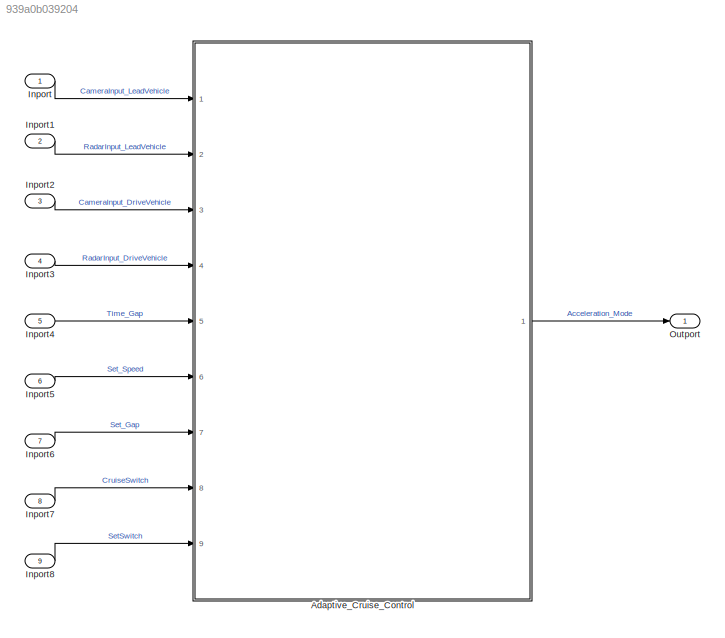
MODEL slx_939a0b039204
KIND model
CONFIG AbsTol = auto
CONFIG EnableMultiTasking = off
CONFIG FixedStep = 0.01
CONFIG MaxStep = 0.01
CONFIG MinStep = auto
CONFIG RelTol = 1e-3
CONFIG SampleTimeConstraint = Unconstrained
CONFIG SolverName = FixedStepDiscrete
CONFIG StartTime = 0.0
CONFIG StopTime = 10.0
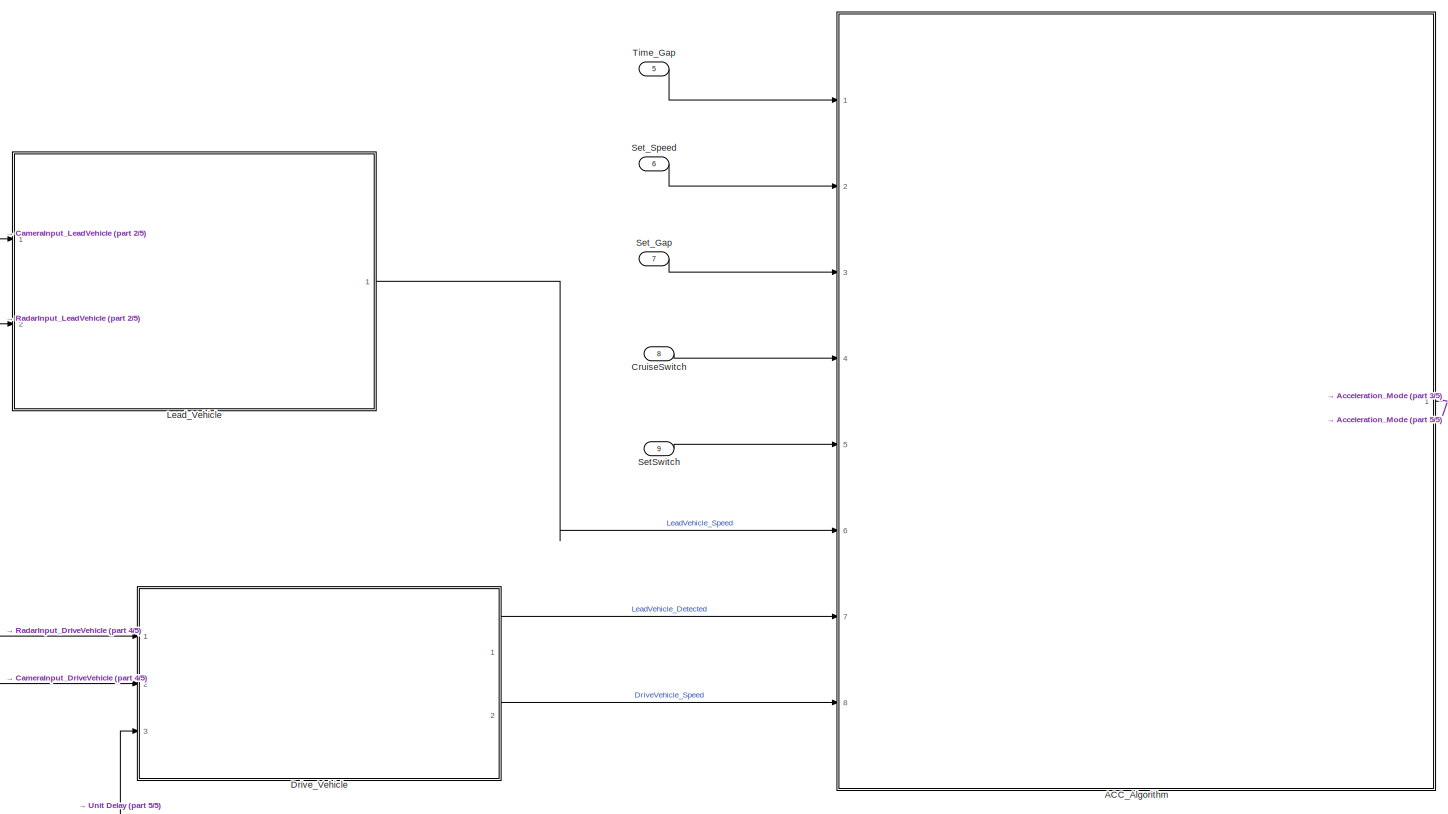
[diagram: Adaptive_Cruise_Control - part 1/5, center side, full height]
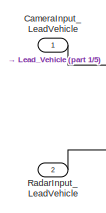
[diagram: Adaptive_Cruise_Control - part 2/5, top left region]
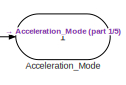
[diagram: Adaptive_Cruise_Control - part 3/5, middle right region]
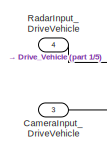
[diagram: Adaptive_Cruise_Control - part 4/5, middle left region]
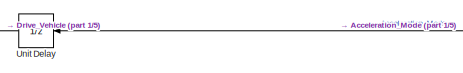
[diagram: Adaptive_Cruise_Control - part 5/5, bottom center region]
BLOCK [SubSystem] Adaptive_Cruise_Control
  Ports = [9, 1]
  RequestExecContextInheritance = off
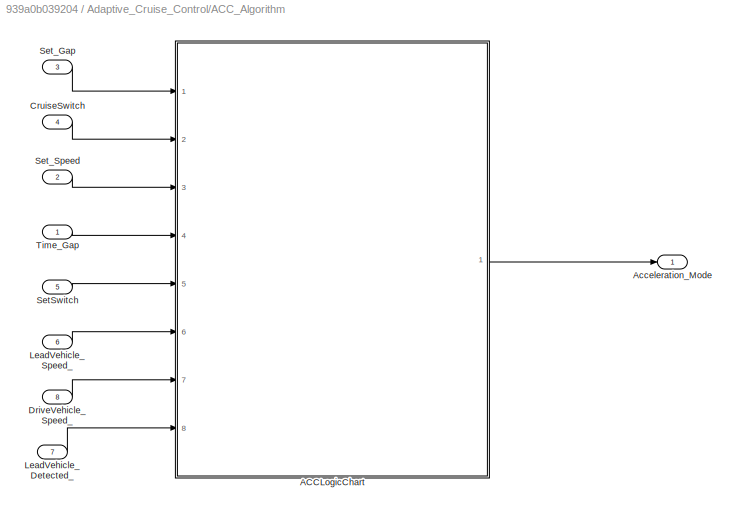
BLOCK [SubSystem] Adaptive_Cruise_Control/ACC_Algorithm
  Ports = [8, 1]
  RequestExecContextInheritance = off
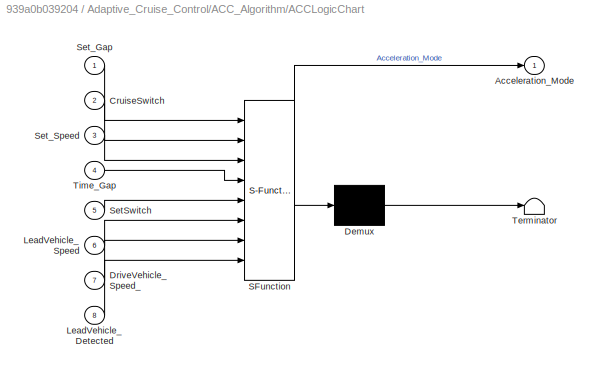
BLOCK [SubSystem] Adaptive_Cruise_Control/ACC_Algorithm/ACCLogicChart
  ErrorFcn = Stateflow.Translate.translate
  PermitHierarchicalResolution = ExplicitOnly
  Ports = [8, 1]
  RequestExecContextInheritance = off
  SFBlockType = Chart
  TreatAsAtomicUnit = on
BLOCK [Demux] Adaptive_Cruise_Control/ACC_Algorithm/ACCLogicChart/ Demux 
  Outputs = 1
  Ports = [1, 1]
BLOCK [S-Function] Adaptive_Cruise_Control/ACC_Algorithm/ACCLogicChart/ SFunction 
  EnableBusSupport = on
  FunctionName = sf_sfun
  PortCounts = [8 2]
  Ports = [8, 2]
  SFcnIsStateOwnerBlock = off
  SFunctionDeploymentMode = off
  Tag = Stateflow S-Function 3
BLOCK [Terminator] Adaptive_Cruise_Control/ACC_Algorithm/ACCLogicChart/ Terminator 
BLOCK [Outport] Adaptive_Cruise_Control/ACC_Algorithm/ACCLogicChart/Acceleration_Mode
BLOCK [Inport] Adaptive_Cruise_Control/ACC_Algorithm/ACCLogicChart/CruiseSwitch
  Port = 2
BLOCK [Inport] Adaptive_Cruise_Control/ACC_Algorithm/ACCLogicChart/DriveVehicle_Speed_
  Port = 7
BLOCK [Inport] Adaptive_Cruise_Control/ACC_Algorithm/ACCLogicChart/LeadVehicle_Detected
  Port = 8
BLOCK [Inport] Adaptive_Cruise_Control/ACC_Algorithm/ACCLogicChart/LeadVehicle_Speed
  Port = 6
BLOCK [Inport] Adaptive_Cruise_Control/ACC_Algorithm/ACCLogicChart/SetSwitch
  Port = 5
BLOCK [Inport] Adaptive_Cruise_Control/ACC_Algorithm/ACCLogicChart/Set_Gap
BLOCK [Inport] Adaptive_Cruise_Control/ACC_Algorithm/ACCLogicChart/Set_Speed
  Port = 3
BLOCK [Inport] Adaptive_Cruise_Control/ACC_Algorithm/ACCLogicChart/Time_Gap
  Port = 4
BLOCK [Outport] Adaptive_Cruise_Control/ACC_Algorithm/Acceleration_Mode
BLOCK [Inport] Adaptive_Cruise_Control/ACC_Algorithm/CruiseSwitch
  Port = 4
BLOCK [Inport] Adaptive_Cruise_Control/ACC_Algorithm/DriveVehicle_Speed_
  Port = 8
BLOCK [Inport] Adaptive_Cruise_Control/ACC_Algorithm/LeadVehicle_Detected_
  Port = 7
BLOCK [Inport] Adaptive_Cruise_Control/ACC_Algorithm/LeadVehicle_Speed_
  Port = 6
BLOCK [Inport] Adaptive_Cruise_Control/ACC_Algorithm/SetSwitch
  Port = 5
BLOCK [Inport] Adaptive_Cruise_Control/ACC_Algorithm/Set_Gap
  Port = 3
BLOCK [Inport] Adaptive_Cruise_Control/ACC_Algorithm/Set_Speed
  Port = 2
BLOCK [Inport] Adaptive_Cruise_Control/ACC_Algorithm/Time_Gap
BLOCK [Outport] Adaptive_Cruise_Control/Acceleration_Mode
BLOCK [Inport] Adaptive_Cruise_Control/CameraInput_DriveVehicle
  Port = 3
BLOCK [Inport] Adaptive_Cruise_Control/CameraInput_LeadVehicle
BLOCK [Inport] Adaptive_Cruise_Control/CruiseSwitch
  Port = 8
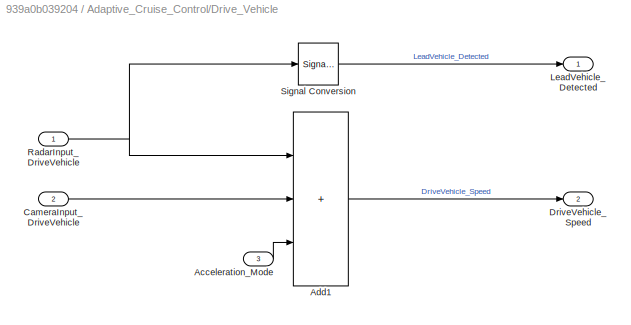
BLOCK [SubSystem] Adaptive_Cruise_Control/Drive_Vehicle
  Ports = [3, 2]
  RequestExecContextInheritance = off
BLOCK [Inport] Adaptive_Cruise_Control/Drive_Vehicle/Acceleration_Mode
  Port = 3
BLOCK [Sum] Adaptive_Cruise_Control/Drive_Vehicle/Add1
  IconShape = rectangular
  Inputs = +++
  Ports = [3, 1]
BLOCK [Inport] Adaptive_Cruise_Control/Drive_Vehicle/CameraInput_DriveVehicle
  Port = 2
BLOCK [Outport] Adaptive_Cruise_Control/Drive_Vehicle/DriveVehicle_Speed
  Port = 2
BLOCK [Outport] Adaptive_Cruise_Control/Drive_Vehicle/LeadVehicle_Detected
BLOCK [Inport] Adaptive_Cruise_Control/Drive_Vehicle/RadarInput_DriveVehicle
BLOCK [SignalConversion] Adaptive_Cruise_Control/Drive_Vehicle/Signal Conversion
  OverrideOpt = off
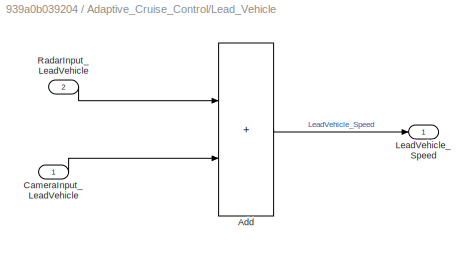
BLOCK [SubSystem] Adaptive_Cruise_Control/Lead_Vehicle
  Ports = [2, 1]
  RequestExecContextInheritance = off
BLOCK [Sum] Adaptive_Cruise_Control/Lead_Vehicle/Add
  IconShape = rectangular
  Ports = [2, 1]
BLOCK [Inport] Adaptive_Cruise_Control/Lead_Vehicle/CameraInput_LeadVehicle
BLOCK [Outport] Adaptive_Cruise_Control/Lead_Vehicle/LeadVehicle_Speed
BLOCK [Inport] Adaptive_Cruise_Control/Lead_Vehicle/RadarInput_LeadVehicle
  Port = 2
BLOCK [Inport] Adaptive_Cruise_Control/RadarInput_DriveVehicle
  Port = 4
BLOCK [Inport] Adaptive_Cruise_Control/RadarInput_LeadVehicle
  Port = 2
BLOCK [Inport] Adaptive_Cruise_Control/SetSwitch
  Port = 9
BLOCK [Inport] Adaptive_Cruise_Control/Set_Gap
  Port = 7
BLOCK [Inport] Adaptive_Cruise_Control/Set_Speed
  Port = 6
BLOCK [Inport] Adaptive_Cruise_Control/Time_Gap
  Port = 5
BLOCK [UnitDelay] Adaptive_Cruise_Control/Unit Delay
  HasFrameUpgradeWarning = on
  SampleTime = -1
BLOCK [Inport] Inport
BLOCK [Inport] Inport1
  Port = 2
BLOCK [Inport] Inport2
  Port = 3
BLOCK [Inport] Inport3
  Port = 4
BLOCK [Inport] Inport4
  Port = 5
BLOCK [Inport] Inport5
  Port = 6
BLOCK [Inport] Inport6
  Port = 7
BLOCK [Inport] Inport7
  Port = 8
BLOCK [Inport] Inport8
  Port = 9
BLOCK [Outport] Outport
LINE Adaptive_Cruise_Control/ACC_Algorithm/ACCLogicChart:1 -> Adaptive_Cruise_Control/ACC_Algorithm/Acceleration_Mode:1
LINE Adaptive_Cruise_Control/ACC_Algorithm/CruiseSwitch:1 -> Adaptive_Cruise_Control/ACC_Algorithm/ACCLogicChart:2
LINE Adaptive_Cruise_Control/ACC_Algorithm/DriveVehicle_Speed_:1 -> Adaptive_Cruise_Control/ACC_Algorithm/ACCLogicChart:7
LINE Adaptive_Cruise_Control/ACC_Algorithm/LeadVehicle_Detected_:1 -> Adaptive_Cruise_Control/ACC_Algorithm/ACCLogicChart:8
LINE Adaptive_Cruise_Control/ACC_Algorithm/LeadVehicle_Speed_:1 -> Adaptive_Cruise_Control/ACC_Algorithm/ACCLogicChart:6
LINE Adaptive_Cruise_Control/ACC_Algorithm/SetSwitch:1 -> Adaptive_Cruise_Control/ACC_Algorithm/ACCLogicChart:5
LINE Adaptive_Cruise_Control/ACC_Algorithm/Set_Gap:1 -> Adaptive_Cruise_Control/ACC_Algorithm/ACCLogicChart:1
LINE Adaptive_Cruise_Control/ACC_Algorithm/Set_Speed:1 -> Adaptive_Cruise_Control/ACC_Algorithm/ACCLogicChart:3
LINE Adaptive_Cruise_Control/ACC_Algorithm/Time_Gap:1 -> Adaptive_Cruise_Control/ACC_Algorithm/ACCLogicChart:4
NET Adaptive_Cruise_Control/ACC_Algorithm:1 -> Adaptive_Cruise_Control/Acceleration_Mode:1, Adaptive_Cruise_Control/Unit Delay:1
LINE Adaptive_Cruise_Control/CameraInput_DriveVehicle:1 -> Adaptive_Cruise_Control/Drive_Vehicle:2
LINE Adaptive_Cruise_Control/CameraInput_LeadVehicle:1 -> Adaptive_Cruise_Control/Lead_Vehicle:1
LINE Adaptive_Cruise_Control/CruiseSwitch:1 -> Adaptive_Cruise_Control/ACC_Algorithm:4
LINE Adaptive_Cruise_Control/Drive_Vehicle/Acceleration_Mode:1 -> Adaptive_Cruise_Control/Drive_Vehicle/Add1:3
LINE Adaptive_Cruise_Control/Drive_Vehicle/Add1:1 -> Adaptive_Cruise_Control/Drive_Vehicle/DriveVehicle_Speed:1
LINE Adaptive_Cruise_Control/Drive_Vehicle/CameraInput_DriveVehicle:1 -> Adaptive_Cruise_Control/Drive_Vehicle/Add1:2
NET Adaptive_Cruise_Control/Drive_Vehicle/RadarInput_DriveVehicle:1 -> Adaptive_Cruise_Control/Drive_Vehicle/Add1:1, Adaptive_Cruise_Control/Drive_Vehicle/Signal Conversion:1
LINE Adaptive_Cruise_Control/Drive_Vehicle/Signal Conversion:1 -> Adaptive_Cruise_Control/Drive_Vehicle/LeadVehicle_Detected:1
LINE Adaptive_Cruise_Control/Drive_Vehicle:1 -> Adaptive_Cruise_Control/ACC_Algorithm:7
LINE Adaptive_Cruise_Control/Drive_Vehicle:2 -> Adaptive_Cruise_Control/ACC_Algorithm:8
LINE Adaptive_Cruise_Control/Lead_Vehicle/Add:1 -> Adaptive_Cruise_Control/Lead_Vehicle/LeadVehicle_Speed:1
LINE Adaptive_Cruise_Control/Lead_Vehicle/CameraInput_LeadVehicle:1 -> Adaptive_Cruise_Control/Lead_Vehicle/Add:2
LINE Adaptive_Cruise_Control/Lead_Vehicle/RadarInput_LeadVehicle:1 -> Adaptive_Cruise_Control/Lead_Vehicle/Add:1
LINE Adaptive_Cruise_Control/Lead_Vehicle:1 -> Adaptive_Cruise_Control/ACC_Algorithm:6
LINE Adaptive_Cruise_Control/RadarInput_DriveVehicle:1 -> Adaptive_Cruise_Control/Drive_Vehicle:1
LINE Adaptive_Cruise_Control/RadarInput_LeadVehicle:1 -> Adaptive_Cruise_Control/Lead_Vehicle:2
LINE Adaptive_Cruise_Control/SetSwitch:1 -> Adaptive_Cruise_Control/ACC_Algorithm:5
LINE Adaptive_Cruise_Control/Set_Gap:1 -> Adaptive_Cruise_Control/ACC_Algorithm:3
LINE Adaptive_Cruise_Control/Set_Speed:1 -> Adaptive_Cruise_Control/ACC_Algorithm:2
LINE Adaptive_Cruise_Control/Time_Gap:1 -> Adaptive_Cruise_Control/ACC_Algorithm:1
LINE Adaptive_Cruise_Control/Unit Delay:1 -> Adaptive_Cruise_Control/Drive_Vehicle:3
LINE Adaptive_Cruise_Control:1 -> Outport:1
LINE Inport1:1 -> Adaptive_Cruise_Control:2
LINE Inport2:1 -> Adaptive_Cruise_Control:3
LINE Inport3:1 -> Adaptive_Cruise_Control:4
LINE Inport4:1 -> Adaptive_Cruise_Control:5
LINE Inport5:1 -> Adaptive_Cruise_Control:6
LINE Inport6:1 -> Adaptive_Cruise_Control:7
LINE Inport7:1 -> Adaptive_Cruise_Control:8
LINE Inport8:1 -> Adaptive_Cruise_Control:9
LINE Inport:1 -> Adaptive_Cruise_Control:1
note: NET lines group one-source signal fan-out (src -> all destinations, sorted); 1:1 wires keep LINE
CHART Adaptive_Cruise_Control/ACC_Algorithm/ACCLogicChart states=9 transitions=19
  STATE_LABEL 'ACC_OFF_MODE\nentry:\nAcceleration_Mode = 0;'
  STATE_LABEL 'ACC_STANDBY_MODE\nentry:\nAcceleration_Mode = 1;\n'
  STATE_LABEL 'ACC_ON_MODE'
  STATE_LABEL 'LeadVehicle_Not_Detected_Resume\nentry:\nAcceleration_Mode = 1;\n'
  STATE_LABEL 'LeadVehicle_Detected_Follow\nentry:\nAcceleration_Mode =2;'
  STATE_LABEL 'LeadVehicle_Detected_Resume\nentry:\nAcceleration_Mode =3;'
  STATE_LABEL 'LeadVehicle_Not_Detected\nentry:\nAcceleration_Mode = 1;'
  STATE_LABEL 'LeadVehicle_Speed_equal_Set_Speed\nentry:\nAcceleration_Mode = 5;'
  STATE_LABEL 'LeadVehicle_Speed_lessthan_Set_Speed\nentry:\nAcceleration_Mode = 4;'
  STATE_LABEL '[LeadVehicle_Detected == 0]'
  STATE_LABEL '[(DriveVehicle_Speed == Set_Speed) && ...\n(LeadVehicle_Speed >= Set_Speed) && ...\n(Time_Gap >= Set_Gap)]'
  STATE_LABEL '[LeadVehicleDetected == 0]'
  STATE_LABEL '[(LeadVehicle_Detected == 1) && ... \n(DriveVehicle_Speed == Set_Speed) && ...\n (LeadVehicle_Speed >= Set_Speed) && ...\n(Time_Gap >= Set_Gap)]'
  STATE_LABEL '[(DriveVehicle_Speed < Set_Speed) && ...\n(LeadVehicle_Speed > DriveVehicle_Speed) ||...\n(Time_Gap >= Set_Gap)]'
  STATE_LABEL '[(LeadVehicle_Speed*1.25 >= DriveVehicle_Speed) && ...\n(LeadVehicle_Speed*0.75 <= DriveVehicle_Speed) && ... \n(DriveVehicle_Speed < Set_Speed) && ...\n(Time_Gap <= 1.25*Set_Gap) && ...\n(Time_Gap >= 0.75*Set_Gap)]'
  STATE_LABEL '[(LeadVehicle_Detected == 0) || ...\n(DriveVehicle_Speed <= Set_Speed)]'
  STATE_LABEL '[(LeadVehicle_Detected == 1) && ...\n(LeadVehicle_Speed < Set_Speed) || ...\n(Time_Gap < Set_Gap)]'
  STATE_LABEL '[(LeadVehicle_Detected == 0) && ...\n(DriveVehicle_Speed == Set_Speed)]'
  STATE_LABEL '[(LeadVehicle_Detected == 1) && ...\n(LeadVehicle_Speed < Set_Speed) || ...\n(Time_Gap < Set_Gap)]'
  STATE_LABEL '[(LeadVehicle_Speed < Set_Speed) && ...\n(LeadVehicle_Speed < DriveVehicle_Speed) || ... \n(Time_Gap == 0.75*Set_Gap)]'
  STATE_LABEL '[(LeadVehicle_Speed*1.25 >= DriveVehicle_Speed) && ...\n(LeadVehicle_Speed*0.75 <= DriveVehicle_Speed) && ... \n(DriveVehicle_Speed < Set_Speed) && ...\n(Time_Gap <= 1.25*Set_Gap) && ...\n(Time_Gap >= 0.75*Set_Gap)]'
  STATE_LABEL 'LeadVehicle_Not_Detected_Resume\nentry:\nAcceleration_Mode = 1;\n'
  STATE_LABEL 'LeadVehicle_Detected_Follow\nentry:\nAcceleration_Mode =2;'
  STATE_LABEL 'LeadVehicle_Detected_Resume\nentry:\nAcceleration_Mode =3;'
  STATE_LABEL 'LeadVehicle_Not_Detected\nentry:\nAcceleration_Mode = 1;'
  STATE_LABEL 'LeadVehicle_Speed_equal_Set_Speed\nentry:\nAcceleration_Mode = 5;'
  STATE_LABEL 'LeadVehicle_Speed_lessthan_Set_Speed\nentry:\nAcceleration_Mode = 4;'
CHART  states=0 transitions=0
